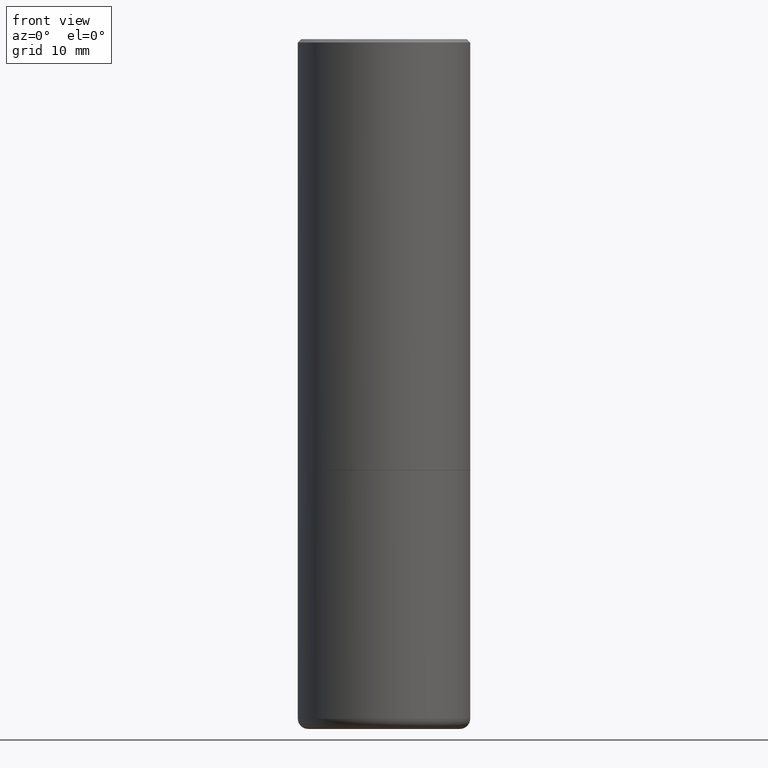
[diagram: clean part render]
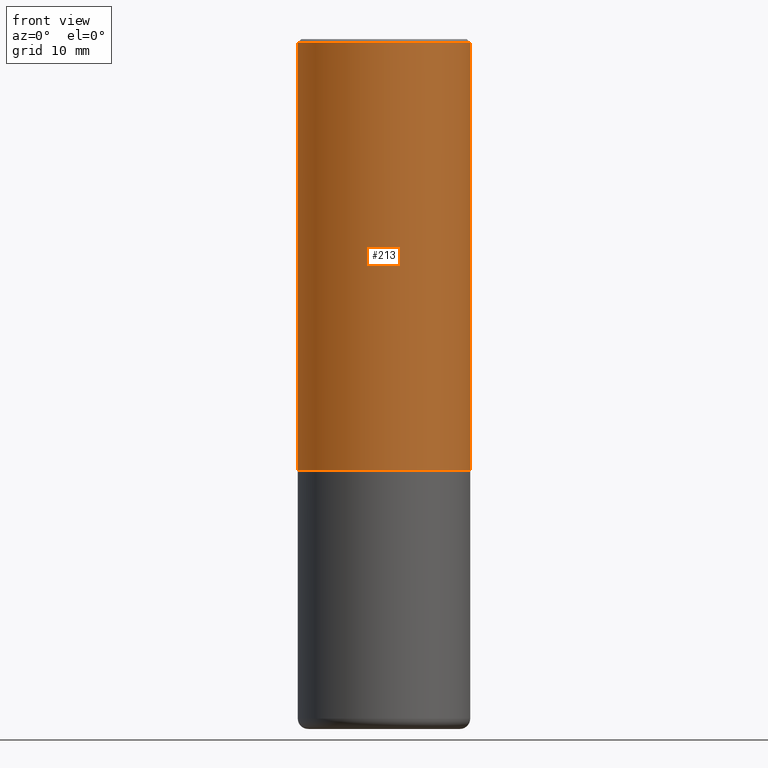
[diagram: same view with one face highlighted and labeled with its STEP entity id]
A machine part, front view. The second image highlights one B-rep face of the part: STEP entity #213.
In plain terms, the highlighted cylindrical surface (partial cylindrical patch) has radius 12.7 mm, axis along (-0, 0, 1).
Its self-contained STEP definition (entity closure, byte-faithful):
#28 = DIRECTION ( 'NONE',  ( -2.445468806185136597E-29, 3.491481338843145583E-15, 1.000000000000000000 ) ) ;
#44 = FACE_OUTER_BOUND ( 'NONE', #310, .T. ) ;
#47 = VERTEX_POINT ( 'NONE', #275 ) ;
#49 = EDGE_CURVE ( 'NONE', #390, #317, #178, .T. ) ;
#66 = CARTESIAN_POINT ( 'NONE',  ( -0.4999999999999997224, 3.421651712066268085E-15, -0.02000000000000011144 ) ) ;
#67 = AXIS2_PLACEMENT_3D ( 'NONE', #118, #91, #384 ) ;
#82 = CARTESIAN_POINT ( 'NONE',  ( 0.5000000000000000000, -1.221669320461215371E-14, -2.499000000000000110 ) ) ;
#84 = CARTESIAN_POINT ( 'NONE',  ( 0.000000000000000000, 0.000000000000000000, 0.000000000000000000 ) ) ;
#91 = DIRECTION ( 'NONE',  ( -2.445468806185136597E-29, 3.491481338843145583E-15, 1.000000000000000000 ) ) ;
#103 = CARTESIAN_POINT ( 'NONE',  ( -0.4999999999999998335, 3.552713678800499746E-15, -2.459467545127452330E-29 ) ) ;
#118 = CARTESIAN_POINT ( 'NONE',  ( 4.890937612370301184E-31, -6.982962677686329819E-17, -0.02000000000000011144 ) ) ;
#134 = EDGE_CURVE ( 'NONE', #317, #47, #244, .T. ) ;
#136 = VERTEX_POINT ( 'NONE', #82 ) ;
#151 = ORIENTED_EDGE ( 'NONE', *, *, #49, .F. ) ;
#175 = DIRECTION ( 'NONE',  ( -2.445468806185136877E-29, 3.491481338843145188E-15, 1.000000000000000000 ) ) ;
#178 = LINE ( 'NONE', #103, #291 ) ;
#181 = ORIENTED_EDGE ( 'NONE', *, *, #325, .T. ) ;
#194 = CARTESIAN_POINT ( 'NONE',  ( 0.4999999999999998335, -3.491481338843132566E-15, 2.438088387897967336E-29 ) ) ;
#196 = LINE ( 'NONE', #194, #358 ) ;
#212 = AXIS2_PLACEMENT_3D ( 'NONE', #328, #28, #321 ) ;
#213 = ADVANCED_FACE ( 'NONE', ( #44 ), #349, .T. ) ;
#233 = DIRECTION ( 'NONE',  ( -2.445468806185136877E-29, 3.491481338843145188E-15, 1.000000000000000000 ) ) ;
#244 = CIRCLE ( 'NONE', #67, 0.4999999999999997224 ) ;
#268 = CARTESIAN_POINT ( 'NONE',  ( -0.5000000000000000000, -8.448070674724411945E-16, -2.499000000000000110 ) ) ;
#269 = CIRCLE ( 'NONE', #212, 0.5000000000000000000 ) ;
#275 = CARTESIAN_POINT ( 'NONE',  ( 0.4999999999999997224, -3.500078625662627502E-15, -0.02000000000000011144 ) ) ;
#291 = VECTOR ( 'NONE', #175, 39.37007874015748143 ) ;
#310 = EDGE_LOOP ( 'NONE', ( #151, #348, #181, #335 ) ) ;
#317 = VERTEX_POINT ( 'NONE', #66 ) ;
#321 = DIRECTION ( 'NONE',  ( 1.000000000000000000, -6.982962677686265133E-15, 0.000000000000000000 ) ) ;
#325 = EDGE_CURVE ( 'NONE', #136, #47, #196, .T. ) ;
#328 = CARTESIAN_POINT ( 'NONE',  ( 6.111226546656657010E-29, -8.725211865769021935E-15, -2.499000000000000110 ) ) ;
#335 = ORIENTED_EDGE ( 'NONE', *, *, #134, .F. ) ;
#347 = AXIS2_PLACEMENT_3D ( 'NONE', #84, #424, #428 ) ;
#348 = ORIENTED_EDGE ( 'NONE', *, *, #366, .T. ) ;
#349 = CYLINDRICAL_SURFACE ( 'NONE', #347, 0.4999999999999998335 ) ;
#358 = VECTOR ( 'NONE', #233, 39.37007874015748143 ) ;
#366 = EDGE_CURVE ( 'NONE', #390, #136, #269, .T. ) ;
#384 = DIRECTION ( 'NONE',  ( 1.000000000000000000, -6.982962677686266711E-15, 0.000000000000000000 ) ) ;
#390 = VERTEX_POINT ( 'NONE', #268 ) ;
#424 = DIRECTION ( 'NONE',  ( -2.445468806185136597E-29, 3.491481338843145583E-15, 1.000000000000000000 ) ) ;
#428 = DIRECTION ( 'NONE',  ( 1.000000000000000000, -6.982962677686267499E-15, 4.876176775795936353E-29 ) ) ;